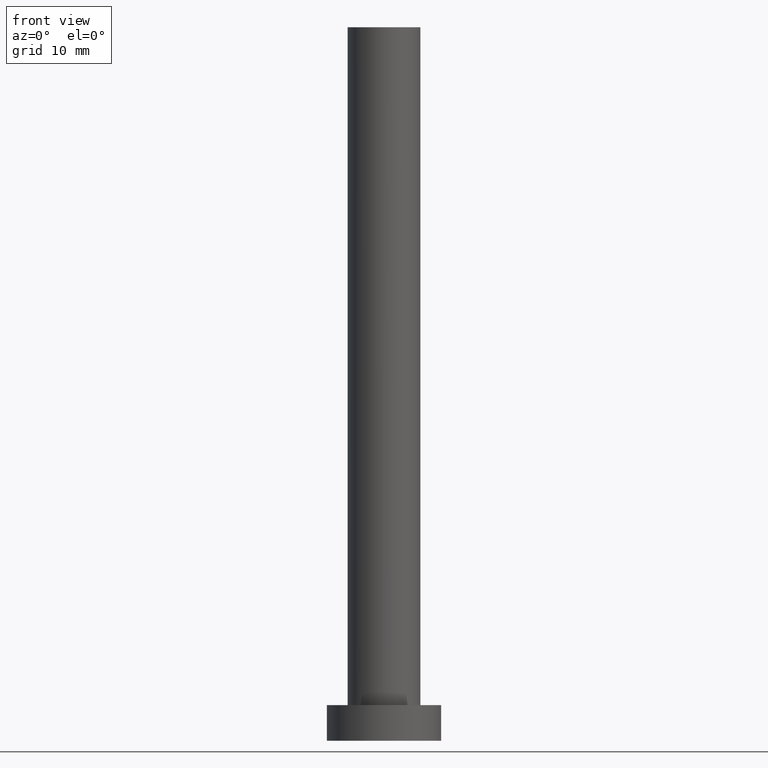
[diagram: clean part render]
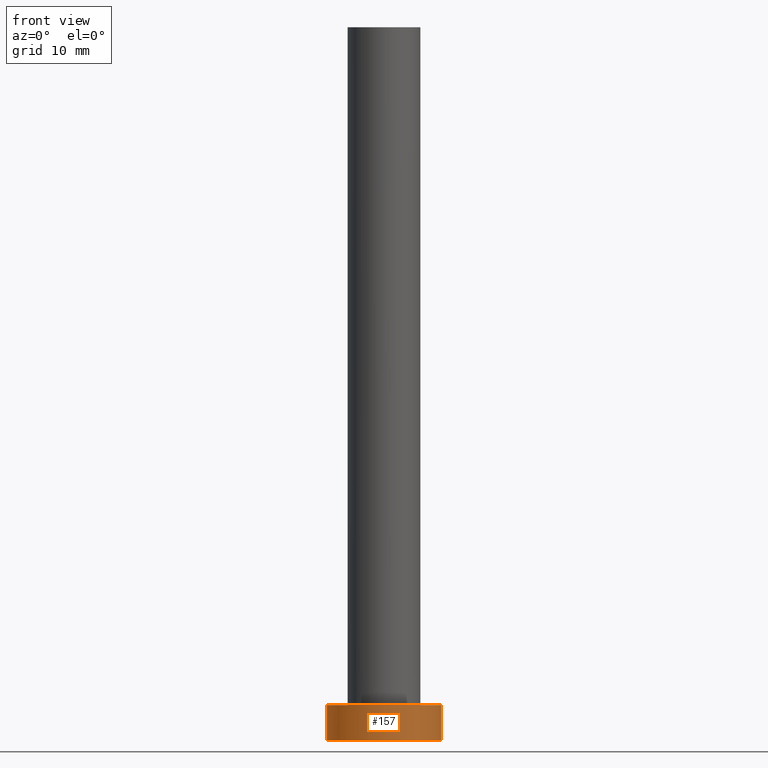
[diagram: same view with one face highlighted and labeled with its STEP entity id]
A machine part, front view. The second image highlights one B-rep face of the part: STEP entity #157.
In plain terms, the highlighted cylindrical surface (partial cylindrical patch) has radius 8 mm, axis along (-0, -0, -1).
Its self-contained STEP definition (entity closure, byte-faithful):
#15 = DIRECTION ( 'NONE',  ( -0.000000000000000000, -0.000000000000000000, -1.000000000000000000 ) ) ;
#17 = CARTESIAN_POINT ( 'NONE',  ( 0.000000000000000000, 0.000000000000000000, 5.000000000000000000 ) ) ;
#21 = VECTOR ( 'NONE', #15, 1000.000000000000000 ) ;
#22 = DIRECTION ( 'NONE',  ( -0.000000000000000000, -0.000000000000000000, -1.000000000000000000 ) ) ;
#24 = ORIENTED_EDGE ( 'NONE', *, *, #105, .F. ) ;
#30 = AXIS2_PLACEMENT_3D ( 'NONE', #204, #22, #236 ) ;
#31 = VERTEX_POINT ( 'NONE', #193 ) ;
#40 = CARTESIAN_POINT ( 'NONE',  ( 8.000000000000000000, 9.797174393178825657E-16, 5.000000000000000000 ) ) ;
#43 = DIRECTION ( 'NONE',  ( 0.000000000000000000, 0.000000000000000000, 1.000000000000000000 ) ) ;
#50 = ORIENTED_EDGE ( 'NONE', *, *, #60, .T. ) ;
#55 = CARTESIAN_POINT ( 'NONE',  ( 0.000000000000000000, 0.000000000000000000, 0.000000000000000000 ) ) ;
#60 = EDGE_CURVE ( 'NONE', #243, #31, #156, .T. ) ;
#63 = VERTEX_POINT ( 'NONE', #99 ) ;
#72 = AXIS2_PLACEMENT_3D ( 'NONE', #55, #178, #124 ) ;
#77 = CIRCLE ( 'NONE', #92, 8.000000000000000000 ) ;
#85 = DIRECTION ( 'NONE',  ( -0.000000000000000000, -0.000000000000000000, -1.000000000000000000 ) ) ;
#92 = AXIS2_PLACEMENT_3D ( 'NONE', #17, #43, #218 ) ;
#99 = CARTESIAN_POINT ( 'NONE',  ( 8.000000000000000000, 9.797174393178825657E-16, 0.000000000000000000 ) ) ;
#105 = EDGE_CURVE ( 'NONE', #243, #189, #77, .T. ) ;
#108 = EDGE_CURVE ( 'NONE', #189, #63, #253, .T. ) ;
#113 = EDGE_CURVE ( 'NONE', #31, #63, #118, .T. ) ;
#118 = CIRCLE ( 'NONE', #72, 8.000000000000000000 ) ;
#124 = DIRECTION ( 'NONE',  ( 1.000000000000000000, 0.000000000000000000, 0.000000000000000000 ) ) ;
#131 = ORIENTED_EDGE ( 'NONE', *, *, #113, .T. ) ;
#135 = ORIENTED_EDGE ( 'NONE', *, *, #108, .F. ) ;
#156 = LINE ( 'NONE', #172, #21 ) ;
#157 = ADVANCED_FACE ( 'NONE', ( #181 ), #252, .T. ) ;
#172 = CARTESIAN_POINT ( 'NONE',  ( -8.000000000000000000, 0.000000000000000000, 5.000000000000000000 ) ) ;
#178 = DIRECTION ( 'NONE',  ( 0.000000000000000000, 0.000000000000000000, 1.000000000000000000 ) ) ;
#181 = FACE_OUTER_BOUND ( 'NONE', #187, .T. ) ;
#187 = EDGE_LOOP ( 'NONE', ( #135, #24, #50, #131 ) ) ;
#189 = VERTEX_POINT ( 'NONE', #40 ) ;
#193 = CARTESIAN_POINT ( 'NONE',  ( -8.000000000000000000, 0.000000000000000000, 0.000000000000000000 ) ) ;
#195 = CARTESIAN_POINT ( 'NONE',  ( 8.000000000000000000, 9.797174393178825657E-16, 5.000000000000000000 ) ) ;
#204 = CARTESIAN_POINT ( 'NONE',  ( 0.000000000000000000, 0.000000000000000000, 5.000000000000000000 ) ) ;
#218 = DIRECTION ( 'NONE',  ( 1.000000000000000000, 0.000000000000000000, 0.000000000000000000 ) ) ;
#229 = VECTOR ( 'NONE', #85, 1000.000000000000000 ) ;
#236 = DIRECTION ( 'NONE',  ( -1.000000000000000000, 0.000000000000000000, 0.000000000000000000 ) ) ;
#243 = VERTEX_POINT ( 'NONE', #251 ) ;
#251 = CARTESIAN_POINT ( 'NONE',  ( -8.000000000000000000, 0.000000000000000000, 5.000000000000000000 ) ) ;
#252 = CYLINDRICAL_SURFACE ( 'NONE', #30, 8.000000000000000000 ) ;
#253 = LINE ( 'NONE', #195, #229 ) ;